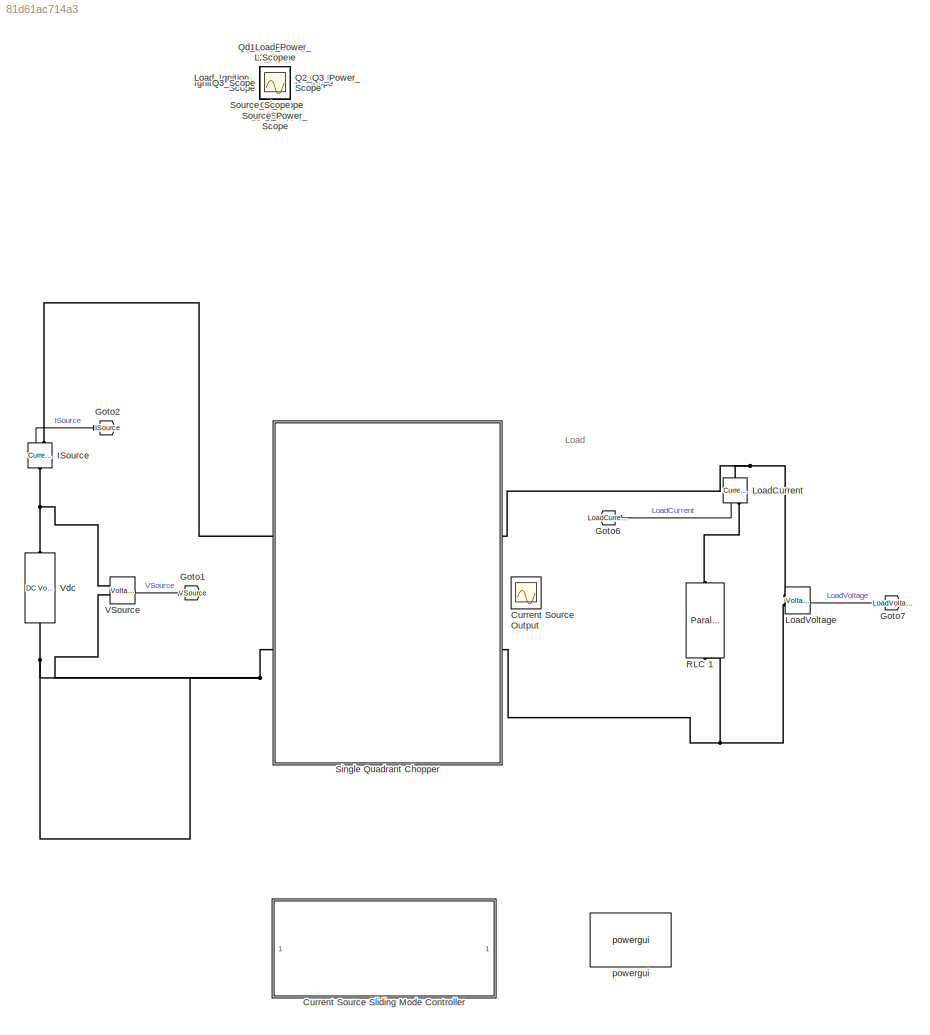
MODEL slx_81d61ac714a3
KIND model
CONFIG AbsTol = auto
CONFIG FixedStep = auto
CONFIG MaxStep = 4e-7
CONFIG MinStep = 1e-8
CONFIG RelTol = 1e-3
CONFIG SampleTimeConstraint = Unconstrained
CONFIG Solver = ode23
CONFIG SolverMode = Auto
CONFIG SolverName = ode23
CONFIG StartTime = 0.0
CONFIG StopTime = 0.1
BLOCK [Reference]  RLC 1  REF=powerlib/Elements/Parallel RLC Branch
  AttributesFormatString = \n
  Ports = [0, 0, 0, 0, 0, 1, 1]
  SourceBlock = powerlib/Elements/Parallel RLC Branch
  SourceType = Parallel RLC Branch
BLOCK [Scope] C2_Scope
  IOType = viewer
  Ports = []
  ScopeSpecificationString = Simulink.scopes.TimeScopeBlockCfg('CurrentConfiguration', extmgr.ConfigurationSet(extmgr.Configuration('Core','General UI',true,'FigureColor',[1 1 1]),extmgr.Configuration('Core','Source UI',true),extmgr.Configuration('Sources','WiredSimulink',true,'DataLoggingVariableName','ScopeData13'),extmgr.Configuration('Visuals','Time Domain',true,'SerializedDisplays',{struct('MinYLimReal','-15.06251','MaxY...<+2339ch>
BLOCK [Scope] Current Source Output
  Floating = on
  Ports = []
  ScopeSpecificationString = Simulink.scopes.TimeScopeBlockCfg('CurrentConfiguration', extmgr.ConfigurationSet(extmgr.Configuration('Core','General UI',true,'FigureColor',[1 1 1]),extmgr.Configuration('Core','Source UI',true),extmgr.Configuration('Sources','WiredSimulink',true,'DataLoggingVariableName','ScopeData17'),extmgr.Configuration('Visuals','Time Domain',true,'SerializedDisplays',{struct('MinYLimReal','-1.25','MaxYLimR...<+1564ch>
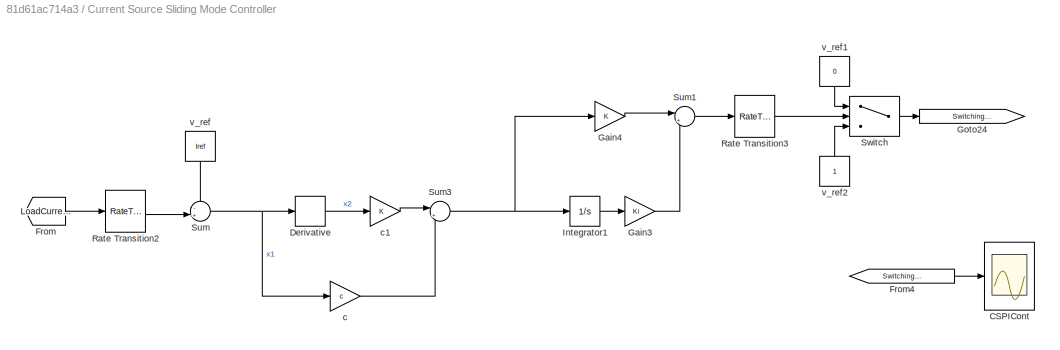
BLOCK [SubSystem] Current Source Sliding Mode Controller
  Ports = []
  RequestExecContextInheritance = off
  Variant = off
BLOCK [Scope] Current Source Sliding Mode Controller/CSPICont
  Ports = [1]
  ScopeSpecificationString = Simulink.scopes.TimeScopeBlockCfg('CurrentConfiguration', extmgr.ConfigurationSet(extmgr.Configuration('Core','General UI',true,'FigureColor',[1 1 1]),extmgr.Configuration('Core','Source UI',true),extmgr.Configuration('Sources','WiredSimulink',true,'DataLoggingVariableName','ScopeData2'),extmgr.Configuration('Visuals','Time Domain',true,'SerializedDisplays',{struct('MinYLimReal','0.91631','MaxYLim...<+1697ch>
BLOCK [Derivative] Current Source Sliding Mode Controller/Derivative
BLOCK [From] Current Source Sliding Mode Controller/From
  GotoTag = LoadCurrent
  TagVisibility = global
BLOCK [From] Current Source Sliding Mode Controller/From4
  GotoTag = SwitchingSignal1
  TagVisibility = global
BLOCK [Gain] Current Source Sliding Mode Controller/Gain3
  Gain = Ki
  OutDataTypeStr = Inherit: Inherit via internal rule
  ParamDataTypeStr = Inherit: Inherit via internal rule
  SaturateOnIntegerOverflow = off
BLOCK [Gain] Current Source Sliding Mode Controller/Gain4
  OutDataTypeStr = Inherit: Inherit via internal rule
  ParamDataTypeStr = Inherit: Inherit via internal rule
  SaturateOnIntegerOverflow = off
BLOCK [Goto] Current Source Sliding Mode Controller/Goto24
  GotoTag = SwitchingSignal1
  TagVisibility = global
BLOCK [Integrator] Current Source Sliding Mode Controller/Integrator1
  Ports = [1, 1]
  ZeroCross = off
BLOCK [RateTransition] Current Source Sliding Mode Controller/Rate Transition2
  OutPortSampleTime = 0.5/50e3
BLOCK [RateTransition] Current Source Sliding Mode Controller/Rate Transition3
  OutPortSampleTime = 0.5/50e3
BLOCK [Sum] Current Source Sliding Mode Controller/Sum
  IconShape = round
  InputSameDT = off
  Inputs = -+|
  OutDataTypeStr = Inherit: Inherit via internal rule
  Ports = [2, 1]
  SaturateOnIntegerOverflow = off
BLOCK [Sum] Current Source Sliding Mode Controller/Sum1
  IconShape = round
  InputSameDT = off
  Inputs = |++
  OutDataTypeStr = Inherit: Inherit via internal rule
  Ports = [2, 1]
  SaturateOnIntegerOverflow = off
BLOCK [Sum] Current Source Sliding Mode Controller/Sum3
  IconShape = round
  InputSameDT = off
  Inputs = |++
  OutDataTypeStr = Inherit: Inherit via internal rule
  Ports = [2, 1]
  SaturateOnIntegerOverflow = off
BLOCK [Switch] Current Source Sliding Mode Controller/Switch
  Criteria = u2 > Threshold
  InputSameDT = off
  SaturateOnIntegerOverflow = off
  ZeroCross = off
BLOCK [Gain] Current Source Sliding Mode Controller/c
  Gain = c
  OutDataTypeStr = Inherit: Inherit via internal rule
  ParamDataTypeStr = Inherit: Inherit via internal rule
  SaturateOnIntegerOverflow = off
BLOCK [Gain] Current Source Sliding Mode Controller/c1
  OutDataTypeStr = Inherit: Inherit via internal rule
  ParamDataTypeStr = Inherit: Inherit via internal rule
  SaturateOnIntegerOverflow = off
BLOCK [Constant] Current Source Sliding Mode Controller/v_ref
  Value = Iref
BLOCK [Constant] Current Source Sliding Mode Controller/v_ref1
  Value = 0
BLOCK [Constant] Current Source Sliding Mode Controller/v_ref2
BLOCK [Scope] D1_Scope
  IOType = viewer
  Ports = []
  ScopeSpecificationString = Simulink.scopes.TimeScopeBlockCfg('CurrentConfiguration', extmgr.ConfigurationSet(extmgr.Configuration('Core','General UI',true,'FigureColor',[1 1 1]),extmgr.Configuration('Core','Source UI',true),extmgr.Configuration('Sources','WiredSimulink',true,'DataLoggingVariableName','ScopeData7'),extmgr.Configuration('Visuals','Time Domain',true,'SerializedDisplays',{struct('MinYLimReal','-14.66126','MaxYL...<+2404ch>
BLOCK [Scope] D_D1_Power_Scope
  IOType = viewer
  Ports = []
  ScopeSpecificationString = Simulink.scopes.TimeScopeBlockCfg('CurrentConfiguration', extmgr.ConfigurationSet(extmgr.Configuration('Core','General UI',true,'FigureColor',[1 1 1]),extmgr.Configuration('Core','Source UI',true),extmgr.Configuration('Sources','WiredSimulink',true,'DataLoggingVariableName','ScopeData3'),extmgr.Configuration('Visuals','Time Domain',true,'SerializedDisplays',{struct('MinYLimReal','-1.01326','MaxYLi...<+4043ch>
BLOCK [Scope] D_Scope
  IOType = viewer
  Ports = []
  ScopeSpecificationString = Simulink.scopes.TimeScopeBlockCfg('CurrentConfiguration', extmgr.ConfigurationSet(extmgr.Configuration('Core','General UI',true,'FigureColor',[1 1 1]),extmgr.Configuration('Core','Source UI',true),extmgr.Configuration('Sources','WiredSimulink',true,'DataLoggingVariableName','ScopeData9'),extmgr.Configuration('Visuals','Time Domain',true,'SerializedDisplays',{struct('MinYLimReal','-134.5402','MaxYL...<+2347ch>
BLOCK [Goto] Goto1
  GotoTag = VSource
  TagVisibility = global
BLOCK [Goto] Goto2
  GotoTag = ISource
  TagVisibility = global
BLOCK [Goto] Goto6
  GotoTag = LoadCurrent
  TagVisibility = global
BLOCK [Goto] Goto7
  GotoTag = LoadVoltage
  TagVisibility = global
BLOCK [Reference] ISource  REF=powerlib/Measurements/Current Measurement
  Ports = [0, 1, 0, 0, 0, 1, 1]
  SourceBlock = powerlib/Measurements/Current Measurement
  SourceType = Current Measurement
  UserDataPersistent = on
BLOCK [Scope] Ignition_Scope
  IOType = viewer
  Ports = []
  ScopeSpecificationString = Simulink.scopes.TimeScopeBlockCfg('CurrentConfiguration', extmgr.ConfigurationSet(extmgr.Configuration('Core','General UI',true,'FigureColor',[1 1 1]),extmgr.Configuration('Core','Source UI',true),extmgr.Configuration('Sources','WiredSimulink',true,'DataLoggingVariableName','ScopeData1'),extmgr.Configuration('Visuals','Time Domain',true,'SerializedDisplays',{struct('MinYLimReal','-0.125','MaxYLimR...<+2362ch>
BLOCK [Scope] L1_C2_Power_Scope
  IOType = viewer
  Ports = []
  ScopeSpecificationString = Simulink.scopes.TimeScopeBlockCfg('CurrentConfiguration', extmgr.ConfigurationSet(extmgr.Configuration('Core','General UI',true,'FigureColor',[1 1 1]),extmgr.Configuration('Core','Source UI',true),extmgr.Configuration('Sources','WiredSimulink',true,'DataLoggingVariableName','ScopeData20'),extmgr.Configuration('Visuals','Time Domain',true,'SerializedDisplays',{struct('MinYLimReal','-1315.07898','Ma...<+4077ch>
BLOCK [Scope] L1_Scope
  IOType = viewer
  Ports = []
  ScopeSpecificationString = Simulink.scopes.TimeScopeBlockCfg('CurrentConfiguration', extmgr.ConfigurationSet(extmgr.Configuration('Core','General UI',true,'FigureColor',[1 1 1]),extmgr.Configuration('Core','Source UI',true),extmgr.Configuration('Sources','WiredSimulink',true,'DataLoggingVariableName','ScopeData5'),extmgr.Configuration('Visuals','Time Domain',true,'SerializedDisplays',{struct('MinYLimReal','-139.36991','MaxY...<+2325ch>
BLOCK [Scope] L2_Scope
  IOType = viewer
  Ports = []
  ScopeSpecificationString = Simulink.scopes.TimeScopeBlockCfg('CurrentConfiguration', extmgr.ConfigurationSet(extmgr.Configuration('Core','General UI',true,'FigureColor',[1 1 1]),extmgr.Configuration('Core','Source UI',true),extmgr.Configuration('Sources','WiredSimulink',true,'DataLoggingVariableName','ScopeData10'),extmgr.Configuration('Visuals','Time Domain',true,'SerializedDisplays',{struct('MinYLimReal','-138.81242','Max...<+2336ch>
BLOCK [Reference] LoadCurrent  REF=powerlib/Measurements/Current Measurement
  Ports = [0, 1, 0, 0, 0, 1, 1]
  SourceBlock = powerlib/Measurements/Current Measurement
  SourceType = Current Measurement
  UserDataPersistent = on
BLOCK [Reference] LoadVoltage  REF=powerlib/Measurements/Voltage Measurement
  Ports = [0, 1, 0, 0, 0, 2]
  SourceBlock = powerlib/Measurements/Voltage Measurement
  SourceType = Voltage Measurement
BLOCK [Scope] Load_Ignition_Scope
  IOType = viewer
  Ports = []
  ScopeSpecificationString = Simulink.scopes.TimeScopeBlockCfg('CurrentConfiguration', extmgr.ConfigurationSet(extmgr.Configuration('Core','General UI',true,'FigureColor',[1 1 1]),extmgr.Configuration('Core','Source UI',true),extmgr.Configuration('Sources','WiredSimulink',true,'DataLoggingVariableName','ScopeData1'),extmgr.Configuration('Visuals','Time Domain',true,'SerializedDisplays',{struct('MinYLimReal','-1.3774','MaxYLim...<+3260ch>
BLOCK [Scope] Load_Scope
  IOType = viewer
  Ports = []
  ScopeSpecificationString = Simulink.scopes.TimeScopeBlockCfg('CurrentConfiguration', extmgr.ConfigurationSet(extmgr.Configuration('Core','General UI',true,'FigureColor',[1 1 1]),extmgr.Configuration('Core','Source UI',true),extmgr.Configuration('Sources','WiredSimulink',true,'DataLoggingVariableName','ScopeData2'),extmgr.Configuration('Visuals','Time Domain',true,'SerializedDisplays',{struct('MinYLimReal','-5.51161','MaxYLi...<+2350ch>
BLOCK [Scope] Q1_L2_Power_Scope
  IOType = viewer
  Ports = []
  ScopeSpecificationString = Simulink.scopes.TimeScopeBlockCfg('CurrentConfiguration', extmgr.ConfigurationSet(extmgr.Configuration('Core','General UI',true,'FigureColor',[1 1 1]),extmgr.Configuration('Core','Source UI',true),extmgr.Configuration('Sources','WiredSimulink',true,'DataLoggingVariableName','ScopeData8'),extmgr.Configuration('Visuals','Time Domain',true,'SerializedDisplays',{struct('MinYLimReal','-1941.15985','Max...<+4065ch>
BLOCK [Scope] Q1_Scope
  IOType = viewer
  Ports = []
  ScopeSpecificationString = Simulink.scopes.TimeScopeBlockCfg('CurrentConfiguration', extmgr.ConfigurationSet(extmgr.Configuration('Core','General UI',true,'FigureColor',[1 1 1]),extmgr.Configuration('Core','Source UI',true),extmgr.Configuration('Sources','WiredSimulink',true,'DataLoggingVariableName','ScopeData4'),extmgr.Configuration('Visuals','Time Domain',true,'SerializedDisplays',{struct('MinYLimReal','-13.85113','MaxYL...<+2350ch>
BLOCK [Scope] Q2_Q3_Power_Scope
  IOType = viewer
  Ports = []
  ScopeSpecificationString = Simulink.scopes.TimeScopeBlockCfg('CurrentConfiguration', extmgr.ConfigurationSet(extmgr.Configuration('Core','General UI',true,'FigureColor',[1 1 1]),extmgr.Configuration('Core','Source UI',true),extmgr.Configuration('Sources','WiredSimulink',true,'DataLoggingVariableName','ScopeData2'),extmgr.Configuration('Visuals','Time Domain',true,'SerializedDisplays',{struct('MinYLimReal','-6.13245','MaxYLi...<+4058ch>
BLOCK [Scope] Q2_Scope
  IOType = viewer
  Ports = []
  ScopeSpecificationString = Simulink.scopes.TimeScopeBlockCfg('CurrentConfiguration', extmgr.ConfigurationSet(extmgr.Configuration('Core','General UI',true,'FigureColor',[1 1 1]),extmgr.Configuration('Core','Source UI',true),extmgr.Configuration('Sources','WiredSimulink',true,'DataLoggingVariableName','ScopeData11'),extmgr.Configuration('Visuals','Time Domain',true,'SerializedDisplays',{struct('MinYLimReal','-13.93922','MaxY...<+2352ch>
BLOCK [Scope] Q3_Scope
  IOType = viewer
  Ports = []
  ScopeSpecificationString = Simulink.scopes.TimeScopeBlockCfg('CurrentConfiguration', extmgr.ConfigurationSet(extmgr.Configuration('Core','General UI',true,'FigureColor',[1 1 1]),extmgr.Configuration('Core','Source UI',true),extmgr.Configuration('Sources','WiredSimulink',true,'DataLoggingVariableName','ScopeData12'),extmgr.Configuration('Visuals','Time Domain',true,'SerializedDisplays',{struct('MinYLimReal','-13.99477','MaxY...<+2351ch>
BLOCK [Scope] Qd_Load_Power_Scope
  IOType = viewer
  Ports = []
  ScopeSpecificationString = Simulink.scopes.TimeScopeBlockCfg('CurrentConfiguration', extmgr.ConfigurationSet(extmgr.Configuration('Core','General UI',true,'FigureColor',[1 1 1]),extmgr.Configuration('Core','Source UI',true),extmgr.Configuration('Sources','WiredSimulink',true,'DataLoggingVariableName','ScopeData23'),extmgr.Configuration('Visuals','Time Domain',true,'SerializedDisplays',{struct('MinYLimReal','-13.81184','MaxY...<+4066ch>
BLOCK [Scope] Qd_Scope
  IOType = viewer
  Ports = []
  ScopeSpecificationString = Simulink.scopes.TimeScopeBlockCfg('CurrentConfiguration', extmgr.ConfigurationSet(extmgr.Configuration('Core','General UI',true,'FigureColor',[1 1 1]),extmgr.Configuration('Core','Source UI',true),extmgr.Configuration('Sources','WiredSimulink',true,'DataLoggingVariableName','ScopeData6'),extmgr.Configuration('Visuals','Time Domain',true,'SerializedDisplays',{struct('MinYLimReal','-15.13754','MaxYL...<+2350ch>
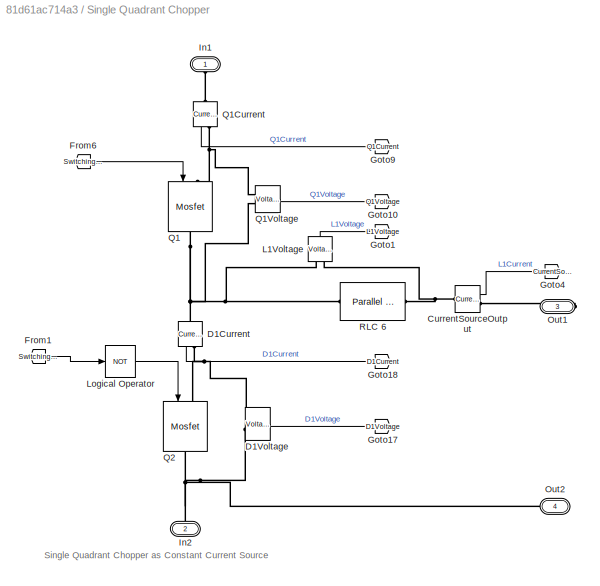
BLOCK [SubSystem] Single Quadrant Chopper
  Ports = [0, 0, 0, 0, 0, 2, 2]
  RequestExecContextInheritance = off
  Variant = off
BLOCK [Reference] Single Quadrant Chopper/ RLC 6  REF=powerlib/Elements/Parallel RLC Branch
  AttributesFormatString = \n
  Ports = [0, 0, 0, 0, 0, 1, 1]
  SourceBlock = powerlib/Elements/Parallel RLC Branch
  SourceType = Parallel RLC Branch
BLOCK [Reference] Single Quadrant Chopper/CurrentSourceOutput  REF=powerlib/Measurements/Current Measurement
  Ports = [0, 1, 0, 0, 0, 1, 1]
  SourceBlock = powerlib/Measurements/Current Measurement
  SourceType = Current Measurement
  UserDataPersistent = on
BLOCK [Reference] Single Quadrant Chopper/D1Current  REF=powerlib/Measurements/Current Measurement
  Ports = [0, 1, 0, 0, 0, 1, 1]
  SourceBlock = powerlib/Measurements/Current Measurement
  SourceType = Current Measurement
  UserDataPersistent = on
BLOCK [Reference] Single Quadrant Chopper/D1Voltage  REF=powerlib/Measurements/Voltage Measurement
  Ports = [0, 1, 0, 0, 0, 2]
  SourceBlock = powerlib/Measurements/Voltage Measurement
  SourceType = Voltage Measurement
BLOCK [From] Single Quadrant Chopper/From1
  GotoTag = SwitchingSignal1
  TagVisibility = global
BLOCK [From] Single Quadrant Chopper/From6
  GotoTag = SwitchingSignal1
  TagVisibility = global
BLOCK [Goto] Single Quadrant Chopper/Goto1
  GotoTag = L1Voltage
  TagVisibility = global
BLOCK [Goto] Single Quadrant Chopper/Goto10
  GotoTag = Q1Voltage
  TagVisibility = global
BLOCK [Goto] Single Quadrant Chopper/Goto17
  GotoTag = D1Voltage
  TagVisibility = global
BLOCK [Goto] Single Quadrant Chopper/Goto18
  GotoTag = D1Current
  TagVisibility = global
BLOCK [Goto] Single Quadrant Chopper/Goto4
  GotoTag = CurrentSourceOutput
  TagVisibility = global
BLOCK [Goto] Single Quadrant Chopper/Goto9
  GotoTag = Q1Current
  TagVisibility = global
BLOCK [PMIOPort] Single Quadrant Chopper/In1
  Port = 1
  Side = Left
BLOCK [PMIOPort] Single Quadrant Chopper/In2
  Port = 2
  Side = Left
BLOCK [Reference] Single Quadrant Chopper/L1Voltage   REF=powerlib/Measurements/Voltage Measurement
  Ports = [0, 1, 0, 0, 0, 2]
  SourceBlock = powerlib/Measurements/Voltage Measurement
  SourceType = Voltage Measurement
BLOCK [Logic] Single Quadrant Chopper/Logical Operator
  AllPortsSameDT = off
  Operator = NOT
  OutDataTypeStr = boolean
  Ports = [1, 1]
BLOCK [PMIOPort] Single Quadrant Chopper/Out1
  Port = 3
  Side = Right
BLOCK [PMIOPort] Single Quadrant Chopper/Out2
  Port = 4
  Side = Right
BLOCK [Reference] Single Quadrant Chopper/Q1  REF=powerlib/Power
Electronics/Mosfet
  Ports = [1, 0, 0, 0, 0, 1, 1]
  SourceBlock = powerlib/Power\nElectronics/Mosfet
  SourceType = Mosfet
BLOCK [Reference] Single Quadrant Chopper/Q1Current  REF=powerlib/Measurements/Current Measurement
  Ports = [0, 1, 0, 0, 0, 1, 1]
  SourceBlock = powerlib/Measurements/Current Measurement
  SourceType = Current Measurement
  UserDataPersistent = on
BLOCK [Reference] Single Quadrant Chopper/Q1Voltage  REF=powerlib/Measurements/Voltage Measurement
  Ports = [0, 1, 0, 0, 0, 2]
  SourceBlock = powerlib/Measurements/Voltage Measurement
  SourceType = Voltage Measurement
BLOCK [Reference] Single Quadrant Chopper/Q2  REF=powerlib/Power
Electronics/Mosfet
  Ports = [1, 0, 0, 0, 0, 1, 1]
  SourceBlock = powerlib/Power\nElectronics/Mosfet
  SourceType = Mosfet
BLOCK [Scope] Source_Power_Scope
  IOType = viewer
  Ports = []
  ScopeSpecificationString = Simulink.scopes.TimeScopeBlockCfg('CurrentConfiguration', extmgr.ConfigurationSet(extmgr.Configuration('Core','General UI',true,'FigureColor',[1 1 1]),extmgr.Configuration('Core','Source UI',true),extmgr.Configuration('Sources','WiredSimulink',true,'DataLoggingVariableName','ScopeData4'),extmgr.Configuration('Visuals','Time Domain',true,'SerializedDisplays',{struct('MinYLimReal','-2421.09632','Max...<+2348ch>
BLOCK [Scope] Source_Scope
  IOType = viewer
  Ports = []
  ScopeSpecificationString = Simulink.scopes.TimeScopeBlockCfg('CurrentConfiguration', extmgr.ConfigurationSet(extmgr.Configuration('Core','General UI',true,'FigureColor',[1 1 1]),extmgr.Configuration('Core','Source UI',true),extmgr.Configuration('Sources','WiredSimulink',true,'DataLoggingVariableName','ScopeData3'),extmgr.Configuration('Visuals','Time Domain',true,'SerializedDisplays',{struct('MinYLimReal','10.00000','MaxYLi...<+2347ch>
BLOCK [Reference] VSource  REF=powerlib/Measurements/Voltage Measurement
  Ports = [0, 1, 0, 0, 0, 2]
  SourceBlock = powerlib/Measurements/Voltage Measurement
  SourceType = Voltage Measurement
BLOCK [Reference] Vdc  REF=powerlib/Electrical
Sources/DC Voltage Source
  Ports = [0, 0, 0, 0, 0, 1, 1]
  SourceBlock = powerlib/Electrical\nSources/DC Voltage Source
  SourceType = DC Voltage Source
BLOCK [Reference] powergui  REF=powerlib/powergui
  Ports = []
  Priority = 1
  SourceBlock = powerlib/powergui
  SourceType = PSB option menu block
  UserDataPersistent = on
ANNOTATION (root): Load
ANNOTATION Single Quadrant Chopper: Single Quadrant Chopper as Constant Current Source
LINE Current Source Sliding Mode Controller/Derivative:1 -> Current Source Sliding Mode Controller/c1:1
LINE Current Source Sliding Mode Controller/From4:1 -> Current Source Sliding Mode Controller/CSPICont:1
LINE Current Source Sliding Mode Controller/From:1 -> Current Source Sliding Mode Controller/Rate Transition2:1
LINE Current Source Sliding Mode Controller/Gain3:1 -> Current Source Sliding Mode Controller/Sum1:2
LINE Current Source Sliding Mode Controller/Gain4:1 -> Current Source Sliding Mode Controller/Sum1:1
LINE Current Source Sliding Mode Controller/Integrator1:1 -> Current Source Sliding Mode Controller/Gain3:1
LINE Current Source Sliding Mode Controller/Rate Transition2:1 -> Current Source Sliding Mode Controller/Sum:2
LINE Current Source Sliding Mode Controller/Rate Transition3:1 -> Current Source Sliding Mode Controller/Switch:2
LINE Current Source Sliding Mode Controller/Sum1:1 -> Current Source Sliding Mode Controller/Rate Transition3:1
NET Current Source Sliding Mode Controller/Sum3:1 -> Current Source Sliding Mode Controller/Gain4:1, Current Source Sliding Mode Controller/Integrator1:1
NET Current Source Sliding Mode Controller/Sum:1 -> Current Source Sliding Mode Controller/Derivative:1, Current Source Sliding Mode Controller/c:1
LINE Current Source Sliding Mode Controller/Switch:1 -> Current Source Sliding Mode Controller/Goto24:1
LINE Current Source Sliding Mode Controller/c1:1 -> Current Source Sliding Mode Controller/Sum3:1
LINE Current Source Sliding Mode Controller/c:1 -> Current Source Sliding Mode Controller/Sum3:2
LINE Current Source Sliding Mode Controller/v_ref1:1 -> Current Source Sliding Mode Controller/Switch:1
LINE Current Source Sliding Mode Controller/v_ref2:1 -> Current Source Sliding Mode Controller/Switch:3
LINE Current Source Sliding Mode Controller/v_ref:1 -> Current Source Sliding Mode Controller/Sum:1
LINE ISource:1 -> Goto2:1
LINE LoadCurrent:1 -> Goto6:1
LINE LoadVoltage:1 -> Goto7:1
LINE Single Quadrant Chopper/CurrentSourceOutput:1 -> Single Quadrant Chopper/Goto4:1
LINE Single Quadrant Chopper/D1Current:1 -> Single Quadrant Chopper/Goto18:1
LINE Single Quadrant Chopper/D1Voltage:1 -> Single Quadrant Chopper/Goto17:1
LINE Single Quadrant Chopper/From1:1 -> Single Quadrant Chopper/Logical Operator:1
LINE Single Quadrant Chopper/From6:1 -> Single Quadrant Chopper/Q1:1
LINE Single Quadrant Chopper/L1Voltage :1 -> Single Quadrant Chopper/Goto1:1
LINE Single Quadrant Chopper/Logical Operator:1 -> Single Quadrant Chopper/Q2:1
LINE Single Quadrant Chopper/Q1Current:1 -> Single Quadrant Chopper/Goto9:1
LINE Single Quadrant Chopper/Q1Voltage:1 -> Single Quadrant Chopper/Goto10:1
LINE VSource:1 -> Goto1:1
PLINE  RLC 1:LConn1 -- LoadCurrent:RConn1
PNET net1:  RLC 1:RConn1 -- LoadVoltage:LConn2 -- Single Quadrant Chopper:RConn2
PNET net2: ISource:LConn1 -- VSource:LConn1 -- Vdc:RConn1
PLINE ISource:RConn1 -- Single Quadrant Chopper:LConn1
PNET net3: LoadCurrent:LConn1 -- LoadVoltage:LConn1 -- Single Quadrant Chopper:RConn1
PNET net4: Single Quadrant Chopper/ RLC 6:LConn1 -- Single Quadrant Chopper/D1Current:LConn1 -- Single Quadrant Chopper/L1Voltage :LConn1 -- Single Quadrant Chopper/Q1:RConn1 -- Single Quadrant Chopper/Q1Voltage:LConn2
PNET net5: Single Quadrant Chopper/ RLC 6:RConn1 -- Single Quadrant Chopper/CurrentSourceOutput:LConn1 -- Single Quadrant Chopper/L1Voltage :LConn2
PLINE Single Quadrant Chopper/CurrentSourceOutput:RConn1 -- Single Quadrant Chopper/Out1:RConn1
PNET net6: Single Quadrant Chopper/D1Current:RConn1 -- Single Quadrant Chopper/D1Voltage:LConn1 -- Single Quadrant Chopper/Q2:LConn1
PNET net7: Single Quadrant Chopper/D1Voltage:LConn2 -- Single Quadrant Chopper/In2:RConn1 -- Single Quadrant Chopper/Out2:RConn1 -- Single Quadrant Chopper/Q2:RConn1
PLINE Single Quadrant Chopper/In1:RConn1 -- Single Quadrant Chopper/Q1Current:LConn1
PNET net8: Single Quadrant Chopper/Q1:LConn1 -- Single Quadrant Chopper/Q1Current:RConn1 -- Single Quadrant Chopper/Q1Voltage:LConn1
PNET net9: Single Quadrant Chopper:LConn2 -- VSource:LConn2 -- Vdc:LConn1
note: NET lines group one-source signal fan-out (src -> all destinations, sorted); 1:1 wires keep LINE; PNET lines group multi-terminal physical nets as a canonical sorted terminal list (undirected conserving connections); 2-terminal nets keep the pairwise PLINE form
